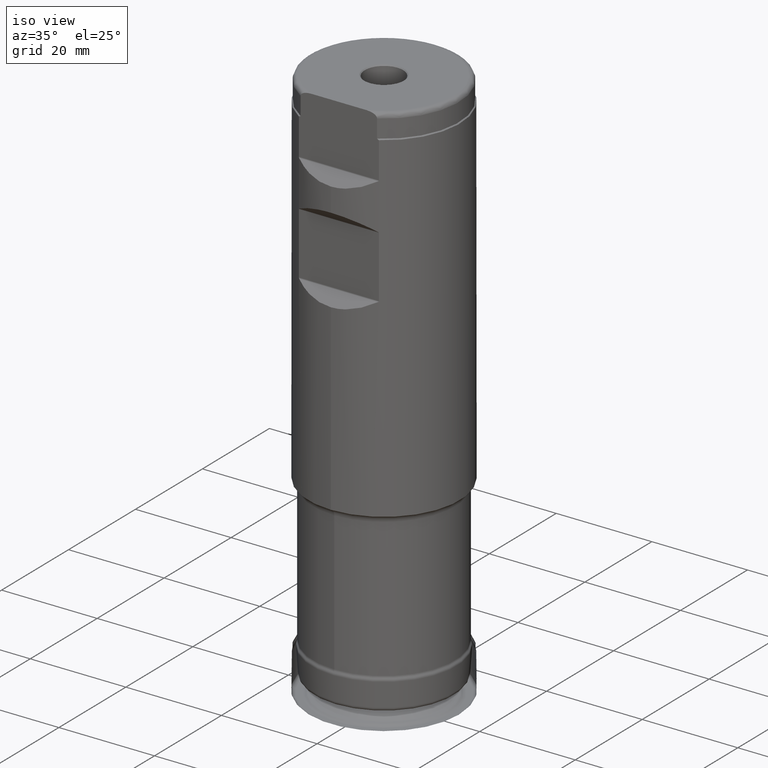
[diagram: clean part render]
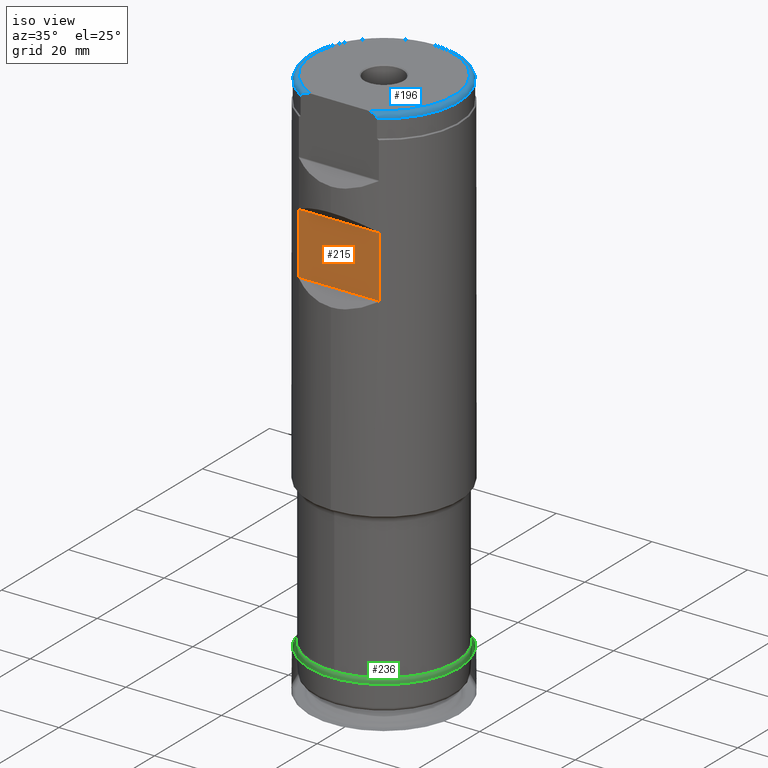
[diagram: same view with three faces highlighted in distinct colors, each labeled with its STEP entity id]
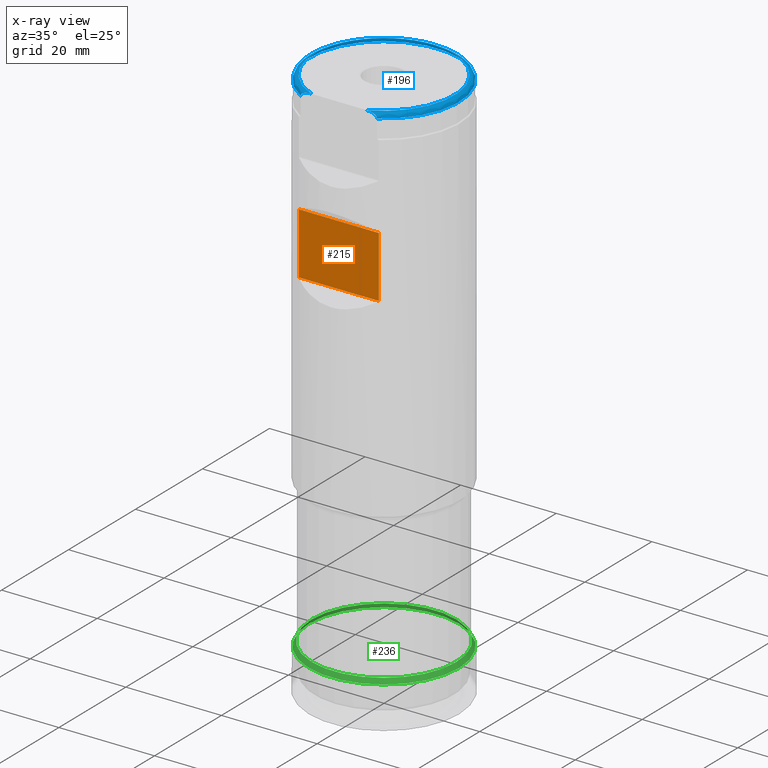
[diagram: x-ray of the same camera — body ghosted, the three highlighted faces saturated]
A machine part, iso view with three faces highlighted in distinct colors.
The next image is the same camera in x-ray (body ghosted, the three faces saturated) — at least one of them is partly hidden behind the body in this view.
Their STEP definitions:

[orange] entity #215 — the highlighted planar face has unit normal (0, -1, 0).
#179=PLANE('',#890);
#188=FACE_OUTER_BOUND('',#425,.T.);
#215=ADVANCED_FACE('',(#188),#179,.T.);
#425=EDGE_LOOP('',(#586,#587,#588,#589));
#482=LINE('',#1380,#495);
#483=LINE('',#1412,#496);
#492=LINE('',#1542,#505);
#493=LINE('',#1543,#506);
#495=VECTOR('',#928,1.);
#496=VECTOR('',#931,1.);
#505=VECTOR('',#1026,1.);
#506=VECTOR('',#1027,1.);
#586=ORIENTED_EDGE('',*,*,#758,.T.);
#587=ORIENTED_EDGE('',*,*,#723,.F.);
#588=ORIENTED_EDGE('',*,*,#759,.T.);
#589=ORIENTED_EDGE('',*,*,#719,.F.);
#654=VERTEX_POINT('',#1363);
#656=VERTEX_POINT('',#1379);
#657=VERTEX_POINT('',#1381);
#660=VERTEX_POINT('',#1411);
#719=EDGE_CURVE('',#656,#657,#482,.T.);
#723=EDGE_CURVE('',#660,#654,#483,.T.);
#758=EDGE_CURVE('',#656,#654,#492,.T.);
#759=EDGE_CURVE('',#660,#657,#493,.T.);
#890=AXIS2_PLACEMENT_3D('',#1544,#1028,#1029);
#928=DIRECTION('',(0.,-1.17145536458252E-15,-1.));
#931=DIRECTION('',(0.,1.17145536458252E-15,1.));
#1026=DIRECTION('',(-1.,7.17309531289991E-32,6.12323399573676E-17));
#1027=DIRECTION('',(1.,-7.17309531289991E-32,-6.12323399573676E-17));
#1028=DIRECTION('',(2.05927208001509E-49,-1.,1.17145536458252E-15));
#1029=DIRECTION('',(6.24500451351651E-17,1.17093834628434E-15,1.));
#1363=CARTESIAN_POINT('',(-8.37291264972949,-13.4873999999999,91.7570609312881));
#1379=CARTESIAN_POINT('',(8.37291264972949,-13.4873999999999,91.7570609312881));
#1380=CARTESIAN_POINT('',(8.37291264972949,-13.4874,1.57998870842703E-14));
#1381=CARTESIAN_POINT('',(8.37291264972949,-13.4873999999999,78.8991890687119));
#1411=CARTESIAN_POINT('',(-8.37291264972949,-13.4873999999999,78.8991890687119));
#1412=CARTESIAN_POINT('',(-8.37291264972949,-13.4874,1.57998870842703E-14));
#1542=CARTESIAN_POINT('',(-17.5,-13.4873999999999,91.7570609312881));
#1543=CARTESIAN_POINT('',(-17.5,-13.4873999999999,78.8991890687119));
#1544=CARTESIAN_POINT('',(-17.5,-13.4873999999999,91.881325));

[blue] entity #196 — the highlighted toroidal blend (fillet) surface has major radius 14.675 mm and minor (blend) radius 1 mm.
#158=TOROIDAL_SURFACE('',#858,14.675,1.);
#183=FACE_OUTER_BOUND('',#393,.T.);
#196=ADVANCED_FACE('',(#183),#158,.T.);
#256=CIRCLE('',#851,15.675);
#259=CIRCLE('',#855,14.675);
#393=EDGE_LOOP('',(#537,#538,#539,#540));
#537=ORIENTED_EDGE('',*,*,#731,.F.);
#538=ORIENTED_EDGE('',*,*,#740,.T.);
#539=ORIENTED_EDGE('',*,*,#736,.F.);
#540=ORIENTED_EDGE('',*,*,#741,.T.);
#668=VERTEX_POINT('',#1453);
#669=VERTEX_POINT('',#1454);
#673=VERTEX_POINT('',#1464);
#674=VERTEX_POINT('',#1465);
#731=EDGE_CURVE('',#668,#669,#256,.T.);
#736=EDGE_CURVE('',#673,#674,#259,.T.);
#740=EDGE_CURVE('',#668,#674,#819,.T.);
#741=EDGE_CURVE('',#673,#669,#820,.T.);
#819=B_SPLINE_CURVE_WITH_KNOTS('',3,(#1477,#1478,#1479,#1480,#1481,#1482,
#1483,#1484),.UNSPECIFIED.,.F.,.F.,(4,2,2,4),(0.,0.249999999999999,0.499999999999998,
1.),.UNSPECIFIED.);
#820=B_SPLINE_CURVE_WITH_KNOTS('',3,(#1485,#1486,#1487,#1488,#1489,#1490,
#1491,#1492),.UNSPECIFIED.,.F.,.F.,(4,2,2,4),(0.,0.500000000000003,0.750000000000002,
1.),.UNSPECIFIED.);
#851=AXIS2_PLACEMENT_3D('',#1452,#942,#943);
#855=AXIS2_PLACEMENT_3D('',#1463,#952,#953);
#858=AXIS2_PLACEMENT_3D('',#1493,#959,#960);
#942=DIRECTION('',(0.,-1.17145536458252E-15,-1.));
#943=DIRECTION('',(0.,-1.,8.85345314693108E-16));
#952=DIRECTION('',(0.,1.17145536458252E-15,1.));
#953=DIRECTION('',(0.,-1.,9.45675489459248E-16));
#959=DIRECTION('',(0.,1.17145536458252E-15,1.));
#960=DIRECTION('',(0.,-1.,8.85345314693108E-16));
#1452=CARTESIAN_POINT('',(0.,1.327258928072E-13,113.3));
#1453=CARTESIAN_POINT('',(-7.98721893028871,-13.4873999999999,113.299999999989));
#1454=CARTESIAN_POINT('',(7.98721893026603,-13.4873999999999,113.3));
#1463=CARTESIAN_POINT('',(0.,1.33897348171783E-13,114.3));
#1464=CARTESIAN_POINT('',(5.78322282468844,-13.4873999999999,114.3));
#1465=CARTESIAN_POINT('',(-5.78322282468866,-13.4873999999999,114.3));
#1477=CARTESIAN_POINT('',(-7.98721893026689,-13.4873999999999,113.299999999988));
#1478=CARTESIAN_POINT('',(-7.98721893027207,-13.4873999999999,113.520202770021));
#1479=CARTESIAN_POINT('',(-7.83736774434978,-13.4873999999999,113.715154682752));
#1480=CARTESIAN_POINT('',(-7.48623082979295,-13.4873999999999,113.980139720299));
#1481=CARTESIAN_POINT('',(-7.2817203242156,-13.4873999999999,114.067554950671));
#1482=CARTESIAN_POINT('',(-6.65729293981298,-13.4873999999999,114.2609297127));
#1483=CARTESIAN_POINT('',(-6.21637245039727,-13.4873999999999,114.3));
#1484=CARTESIAN_POINT('',(-5.78322282468866,-13.4873999999999,114.3));
#1485=CARTESIAN_POINT('',(5.78322282468844,-13.4873999999999,114.3));
#1486=CARTESIAN_POINT('',(6.21394869343176,-13.4873999999999,114.3));
#1487=CARTESIAN_POINT('',(6.65580566004196,-13.4873999999999,114.261664403719));
#1488=CARTESIAN_POINT('',(7.28486381477456,-13.4873999999999,114.06644362587));
#1489=CARTESIAN_POINT('',(7.48748729423047,-13.4873999999999,113.979507582041));
#1490=CARTESIAN_POINT('',(7.83842269980535,-13.4873999999999,113.714040424023));
#1491=CARTESIAN_POINT('',(7.98721893026603,-13.4873999999999,113.522383261353));
#1492=CARTESIAN_POINT('',(7.98721893026603,-13.4873999999999,113.3));
#1493=CARTESIAN_POINT('',(0.,1.327258928072E-13,113.3));

[green] entity #236 — the highlighted face is a SurfaceOfRevolution surface.
#121=SURFACE_OF_REVOLUTION('',#834,#144);
#144=AXIS1_PLACEMENT('',#1743,#1094);
#236=ADVANCED_FACE('',(#366,#367),#121,.F.);
#289=CIRCLE('',#914,15.6950021240157);
#290=CIRCLE('',#915,15.0987883751859);
#366=FACE_BOUND('',#462,.T.);
#367=FACE_BOUND('',#463,.T.);
#462=EDGE_LOOP('',(#633));
#463=EDGE_LOOP('',(#634));
#633=ORIENTED_EDGE('',*,*,#777,.T.);
#634=ORIENTED_EDGE('',*,*,#778,.F.);
#706=VERTEX_POINT('',#1715);
#707=VERTEX_POINT('',#1736);
#777=EDGE_CURVE('',#706,#706,#289,.T.);
#778=EDGE_CURVE('',#707,#707,#290,.T.);
#834=B_SPLINE_CURVE_WITH_KNOTS('',5,(#1737,#1738,#1739,#1740,#1741,#1742),
 .UNSPECIFIED.,.F.,.F.,(6,6),(0.,1.),.UNSPECIFIED.);
#914=AXIS2_PLACEMENT_3D('',#1714,#1089,#1090);
#915=AXIS2_PLACEMENT_3D('',#1735,#1092,#1093);
#1089=DIRECTION('',(0.,0.,-1.));
#1090=DIRECTION('',(-1.,0.,0.));
#1092=DIRECTION('',(0.,0.,-1.));
#1093=DIRECTION('',(-1.,0.,0.));
#1094=DIRECTION('',(0.,0.,-1.));
#1714=CARTESIAN_POINT('',(0.,0.,6.3022973420502));
#1715=CARTESIAN_POINT('',(-15.6950021240157,0.,6.3022973420502));
#1735=CARTESIAN_POINT('',(0.,0.,7.29343648458997));
#1736=CARTESIAN_POINT('',(-15.0987883751859,0.,7.29343648458997));
#1737=CARTESIAN_POINT('',(15.0987957715618,0.,7.293440862742));
#1738=CARTESIAN_POINT('',(15.2179510436665,3.6480034595617E-33,7.09516044767734));
#1739=CARTESIAN_POINT('',(15.337151042438,4.61748379571102E-33,6.89690691078001));
#1740=CARTESIAN_POINT('',(15.4563939719883,1.05828525212555E-32,6.6986791884203));
#1741=CARTESIAN_POINT('',(15.5756781783583,8.62399251459767E-33,6.50047630167807));
#1742=CARTESIAN_POINT('',(15.6950021240157,0.,6.3022973420502));
#1743=CARTESIAN_POINT('',(0.,0.,0.));